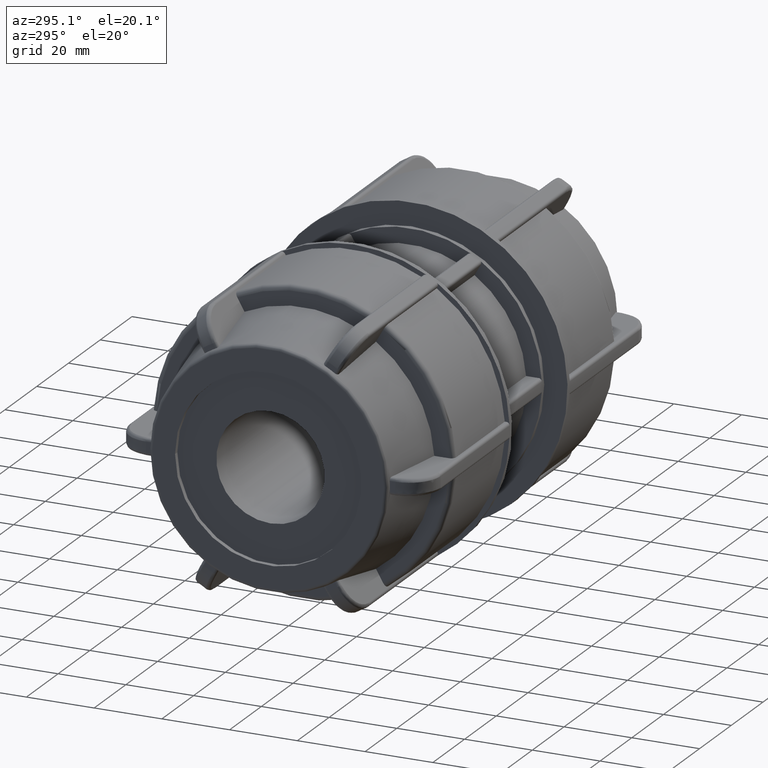
[diagram: clean part render]
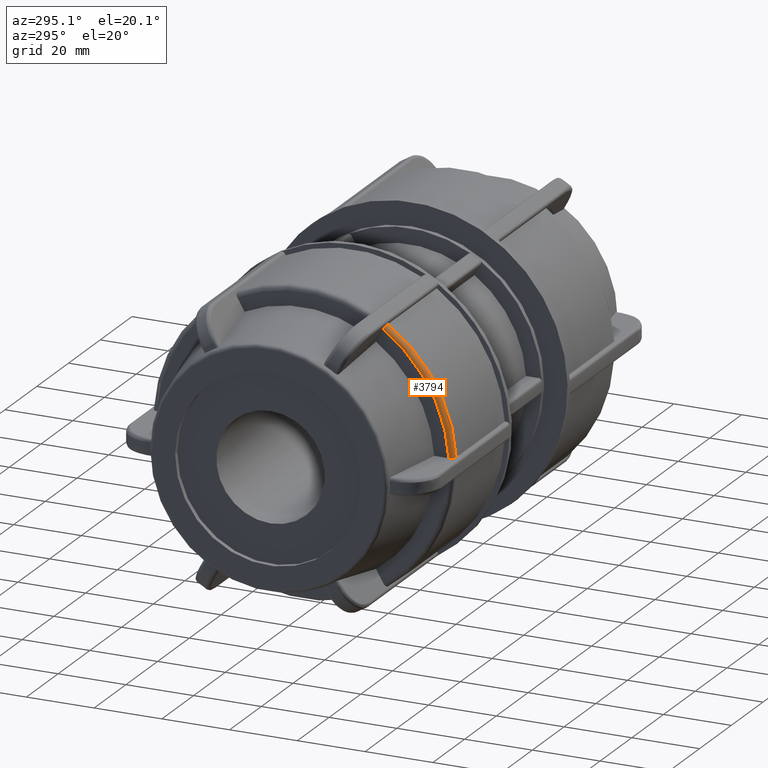
[diagram: same view with one face highlighted and labeled with its STEP entity id]
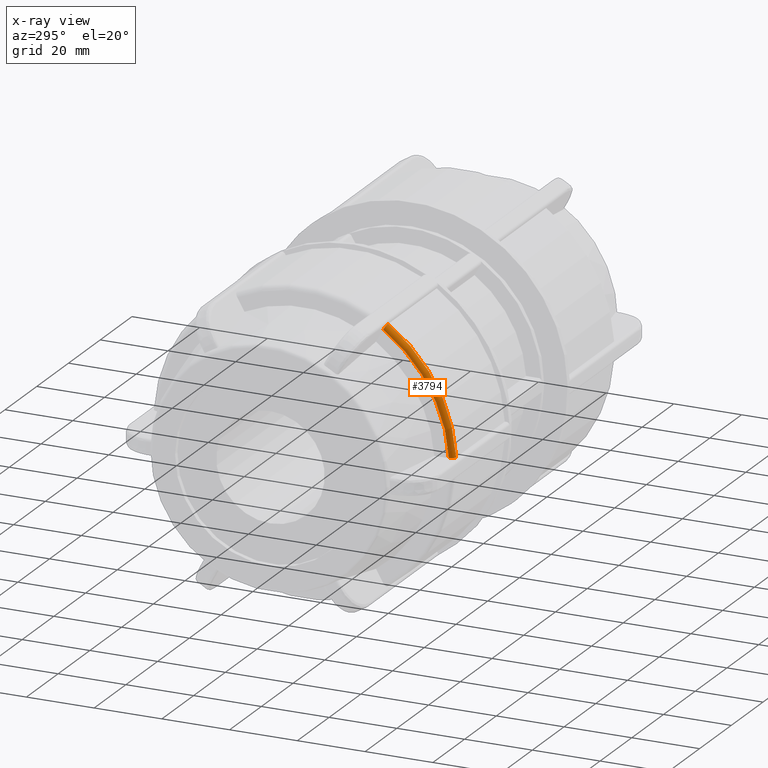
[diagram: x-ray of the same camera — body ghosted, the highlighted face saturated]
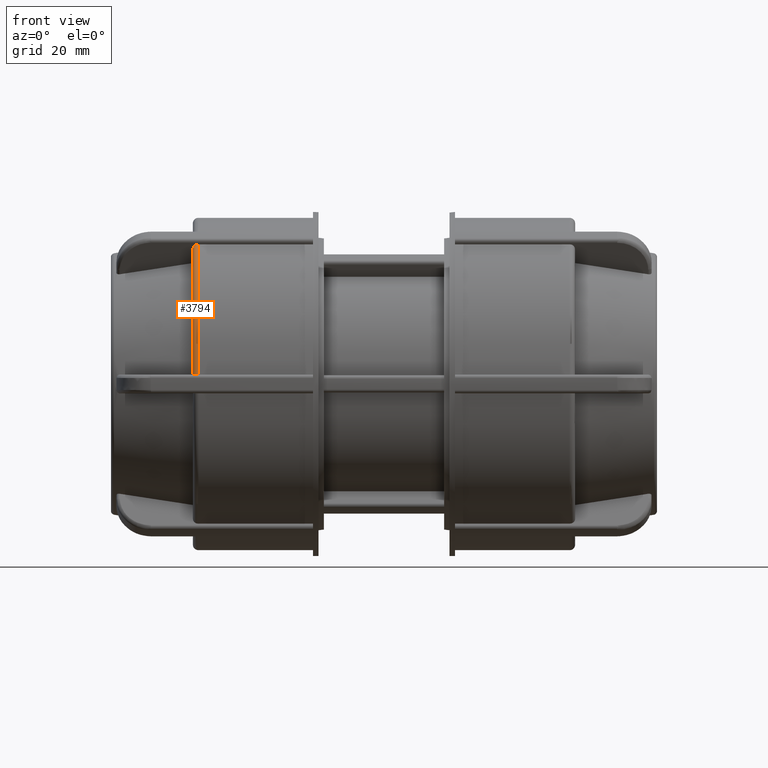
[diagram: same view with one face highlighted and labeled with its STEP entity id]
A machine part, auxiliary view. The second image highlights one B-rep face of the part: STEP entity #3794.
The next image is the same camera in x-ray: the body ghosted, the highlighted face saturated — about 0% of this face is hidden behind the body in this view.
A second angle (front view) of the same face is appended — the face is thin or edge-on in the first view.
In plain terms, the highlighted toroidal blend (fillet) surface has major radius 43.16 mm and minor (blend) radius 1.46 mm.
Its self-contained STEP definition (entity closure, byte-faithful):
#24=TOROIDAL_SURFACE('',#4138,43.16,1.46);
#84=B_SPLINE_CURVE_WITH_KNOTS('',3,(#6160,#6161,#6162,#6163,#6164,#6165,
#6166,#6167,#6168,#6169),.UNSPECIFIED.,.F.,.F.,(4,2,2,2,4),(-0.216397312035065,
-0.162223664148741,-0.108098313662018,-0.0540274345760972,0.),
 .UNSPECIFIED.);
#106=B_SPLINE_CURVE_WITH_KNOTS('',3,(#6661,#6662,#6663,#6664,#6665,#6666,
#6667,#6668,#6669,#6670),.UNSPECIFIED.,.F.,.F.,(4,2,2,2,4),(0.,0.054027434576095,
0.108098313662016,0.162223664148741,0.216397312035065),.UNSPECIFIED.);
#408=FACE_OUTER_BOUND('',#650,.T.);
#650=EDGE_LOOP('',(#2948,#2949,#2950,#2951));
#1359=CIRCLE('',#4123,43.16);
#1369=CIRCLE('',#4139,44.62);
#1625=VERTEX_POINT('',#6157);
#1626=VERTEX_POINT('',#6159);
#1683=VERTEX_POINT('',#6658);
#1684=VERTEX_POINT('',#6660);
#2060=EDGE_CURVE('',#1626,#1625,#84,.T.);
#2146=EDGE_CURVE('',#1684,#1683,#106,.T.);
#2154=EDGE_CURVE('',#1683,#1626,#1359,.T.);
#2166=EDGE_CURVE('',#1625,#1684,#1369,.T.);
#2948=ORIENTED_EDGE('',*,*,#2060,.T.);
#2949=ORIENTED_EDGE('',*,*,#2166,.T.);
#2950=ORIENTED_EDGE('',*,*,#2146,.T.);
#2951=ORIENTED_EDGE('',*,*,#2154,.T.);
#3794=ADVANCED_FACE('',(#408),#24,.T.);
#4123=AXIS2_PLACEMENT_3D('',#6684,#4898,#4899);
#4138=AXIS2_PLACEMENT_3D('',#6713,#4929,#4930);
#4139=AXIS2_PLACEMENT_3D('',#6714,#4931,#4932);
#4898=DIRECTION('center_axis',(1.,3.06161699786838E-16,0.));
#4899=DIRECTION('ref_axis',(3.06161699786838E-16,-1.,1.83697019872103E-16));
#4929=DIRECTION('center_axis',(1.,3.06161699786838E-16,0.));
#4930=DIRECTION('ref_axis',(0.,0.,-1.));
#4931=DIRECTION('center_axis',(-1.,-3.06161699786838E-16,0.));
#4932=DIRECTION('ref_axis',(3.04801256200318E-16,-1.,1.83697019872103E-16));
#6157=CARTESIAN_POINT('',(-49.64,-44.5499090908164,2.50000000000001));
#6159=CARTESIAN_POINT('',(-51.1,-43.0875341601257,2.50000000000001));
#6160=CARTESIAN_POINT('Ctrl Pts',(-51.1,-43.0875341601257,2.50000000000001));
#6161=CARTESIAN_POINT('Ctrl Pts',(-51.1,-43.2681129864135,2.50000000000001));
#6162=CARTESIAN_POINT('Ctrl Pts',(-51.0577761184351,-43.4806540173477,2.50000000000001));
#6163=CARTESIAN_POINT('Ctrl Pts',(-50.9197401615621,-43.8142176005505,2.50000000000001));
#6164=CARTESIAN_POINT('Ctrl Pts',(-50.7995595234617,-43.9942994465837,2.50000000000001));
#6165=CARTESIAN_POINT('Ctrl Pts',(-50.5446615656107,-44.2494433469669,2.50000000000001));
#6166=CARTESIAN_POINT('Ctrl Pts',(-50.3648942520846,-44.3697025355121,2.50000000000001));
#6167=CARTESIAN_POINT('Ctrl Pts',(-50.0320394097568,-44.5077014997223,2.50000000000001));
#6168=CARTESIAN_POINT('Ctrl Pts',(-49.820091448587,-44.5499090908164,2.50000000000001));
#6169=CARTESIAN_POINT('Ctrl Pts',(-49.64,-44.5499090908164,2.50000000000001));
#6658=CARTESIAN_POINT('',(-51.1,-23.7088305895239,36.0648991690987));
#6660=CARTESIAN_POINT('',(-49.64,-24.4400180548693,37.3313530089343));
#6661=CARTESIAN_POINT('Ctrl Pts',(-49.64,-24.4400180548693,37.3313530089343));
#6662=CARTESIAN_POINT('Ctrl Pts',(-49.820091448587,-24.4400180548693,37.3313530089343));
#6663=CARTESIAN_POINT('Ctrl Pts',(-50.0320394097568,-24.4189142593223,37.2948001628143));
#6664=CARTESIAN_POINT('Ctrl Pts',(-50.3648942520845,-24.3499147772172,37.1752895541124));
#6665=CARTESIAN_POINT('Ctrl Pts',(-50.5446615656107,-24.2897851829445,37.0711420417936));
#6666=CARTESIAN_POINT('Ctrl Pts',(-50.7995595234617,-24.162213232753,36.8501809424412));
#6667=CARTESIAN_POINT('Ctrl Pts',(-50.9197401615621,-24.0721723097363,36.694225489016));
#6668=CARTESIAN_POINT('Ctrl Pts',(-51.0577761184351,-23.9053905181349,36.405350952185));
#6669=CARTESIAN_POINT('Ctrl Pts',(-51.1,-23.7991200026678,36.2212850200494));
#6670=CARTESIAN_POINT('Ctrl Pts',(-51.1,-23.7088305895239,36.0648991690987));
#6684=CARTESIAN_POINT('Origin',(-51.1,-1.56448628591074E-14,0.));
#6713=CARTESIAN_POINT('Origin',(-49.64,-1.51978667774187E-14,0.));
#6714=CARTESIAN_POINT('Origin',(-49.64,-1.51978667774187E-14,0.));